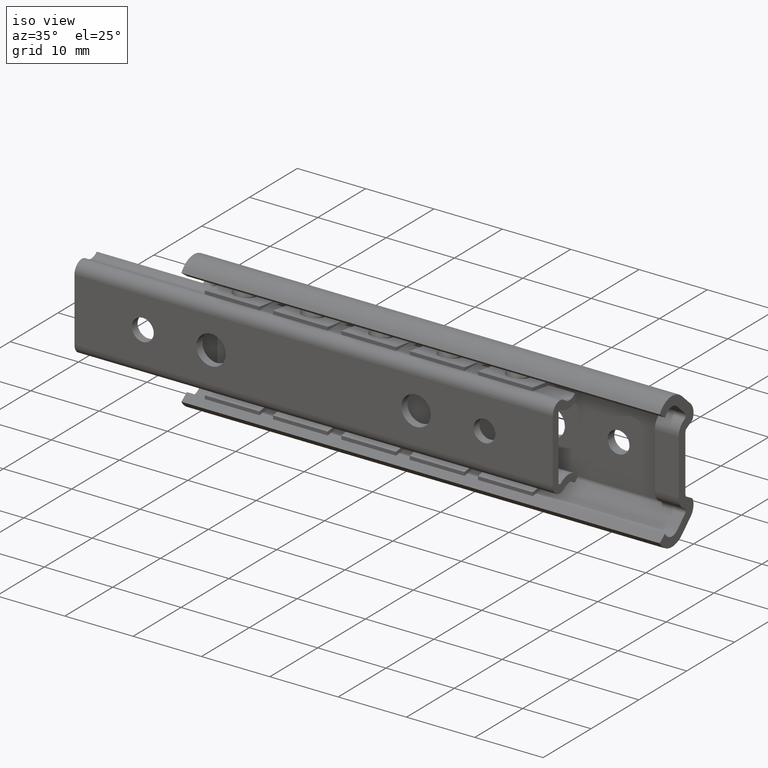
[diagram: clean part render]
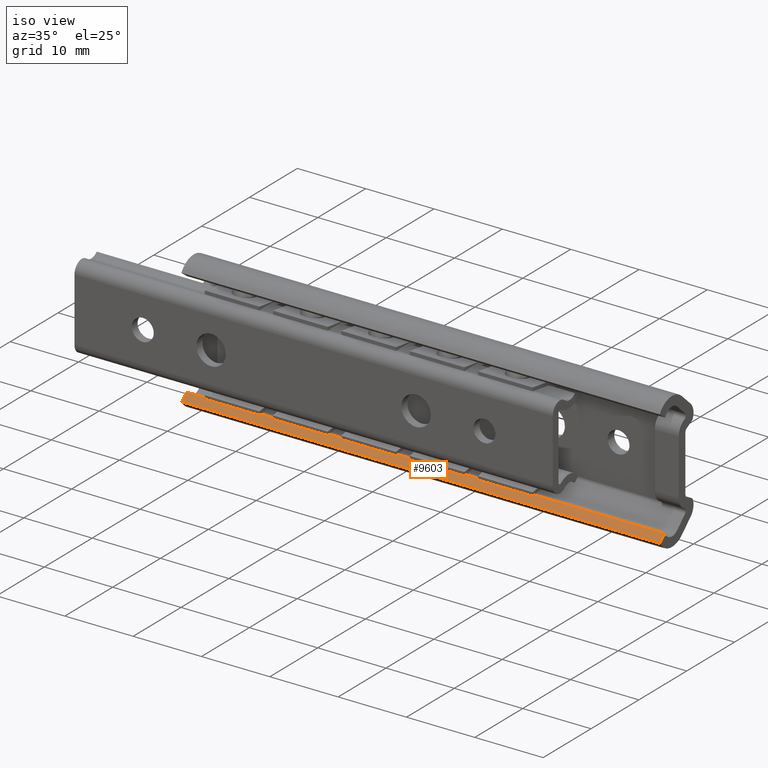
[diagram: same view with one face highlighted and labeled with its STEP entity id]
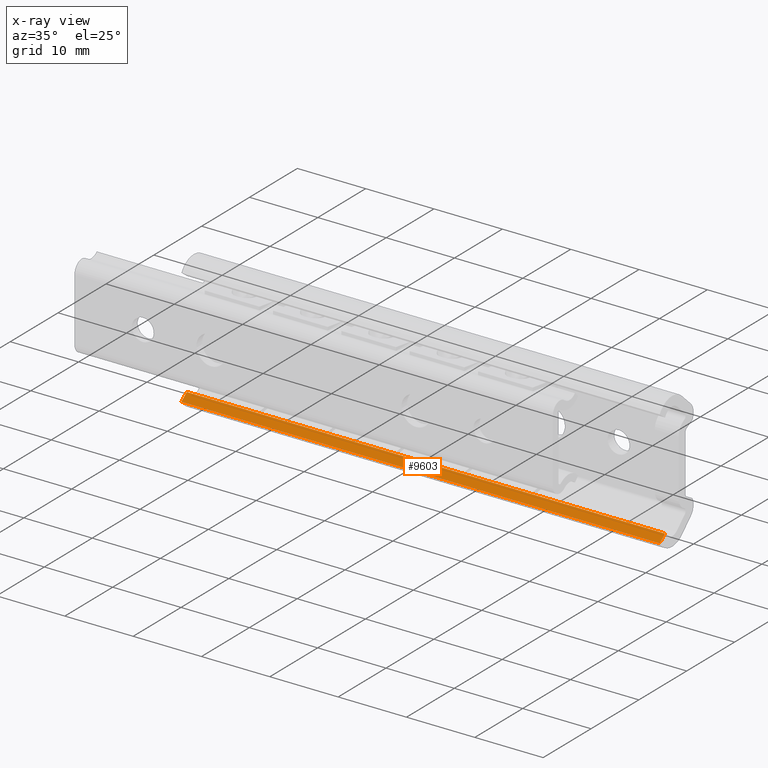
[diagram: x-ray of the same camera — body ghosted, the highlighted face saturated]
A machine part, iso view. The second image highlights one B-rep face of the part: STEP entity #9603.
The next image is the same camera in x-ray: the body ghosted, the highlighted face saturated — about 0% of this face is hidden behind the body in this view.
In plain terms, the highlighted face is a freeform B-spline surface patch.
Its self-contained STEP definition (entity closure, byte-faithful):
#7775=CARTESIAN_POINT('',(70.0,-5.943724000000290,-7.672665000000091));
#7776=VERTEX_POINT('',#7775);
#7792=CARTESIAN_POINT('',(70.0,-7.078071239486619,-8.522037986978919));
#7793=VERTEX_POINT('',#7792);
#7794=CARTESIAN_POINT('',(70.0,-7.078071239486619,-8.522037986978919));
#7795=CARTESIAN_POINT('',(70.0,-5.943724000000290,-7.672665000000091));
#7796=QUASI_UNIFORM_CURVE('',1,(#7794,#7795),.UNSPECIFIED.,.F.,.U.);
#7797=EDGE_CURVE('',#7793,#7776,#7796,.T.);
#8663=CARTESIAN_POINT('',(0.0,-7.078071239486619,-8.522037986978919));
#8664=VERTEX_POINT('',#8663);
#8680=CARTESIAN_POINT('',(0.0,-5.943724000000290,-7.672665000000091));
#8681=VERTEX_POINT('',#8680);
#8682=CARTESIAN_POINT('',(0.0,-7.078071239486619,-8.522037986978919));
#8683=CARTESIAN_POINT('',(0.0,-5.943724000000290,-7.672665000000091));
#8684=QUASI_UNIFORM_CURVE('',1,(#8682,#8683),.UNSPECIFIED.,.F.,.U.);
#8685=EDGE_CURVE('',#8664,#8681,#8684,.T.);
#9577=CARTESIAN_POINT('',(70.0,-5.943724000000290,-7.672665000000091));
#9578=CARTESIAN_POINT('',(0.0,-5.943724000000290,-7.672665000000091));
#9579=QUASI_UNIFORM_CURVE('',1,(#9577,#9578),.UNSPECIFIED.,.F.,.U.);
#9580=EDGE_CURVE('',#7776,#8681,#9579,.T.);
#9588=CARTESIAN_POINT('',(-3.496499864326419,-5.887063517869845,-7.630238931355883));
#9589=CARTESIAN_POINT('',(-3.496499864326419,-7.134731893022689,-8.564464376311195));
#9590=CARTESIAN_POINT('',(73.496501741872720,-5.887063517869845,-7.630238931355883));
#9591=CARTESIAN_POINT('',(73.496501741872720,-7.134731893022689,-8.564464376311195));
#9592=B_SPLINE_SURFACE_WITH_KNOTS('',1,1,((#9588,#9590),(#9589,#9591)),.UNSPECIFIED.,.F.,.F.,.U.,(2,2),(2,2),(0.041708449312299,0.958291744402796),(0.0,76.993001606199144),.UNSPECIFIED.);
#9593=CARTESIAN_POINT('',(70.0,-7.078071239486619,-8.522037986978919));
#9594=CARTESIAN_POINT('',(0.0,-7.078071239486619,-8.522037986978919));
#9595=QUASI_UNIFORM_CURVE('',1,(#9593,#9594),.UNSPECIFIED.,.F.,.U.);
#9596=EDGE_CURVE('',#7793,#8664,#9595,.T.);
#9597=ORIENTED_EDGE('',*,*,#9596,.F.);
#9598=ORIENTED_EDGE('',*,*,#7797,.T.);
#9599=ORIENTED_EDGE('',*,*,#9580,.T.);
#9600=ORIENTED_EDGE('',*,*,#8685,.F.);
#9601=EDGE_LOOP('',(#9597,#9598,#9599,#9600));
#9602=FACE_OUTER_BOUND('',#9601,.T.);
#9603=ADVANCED_FACE('',(#9602),#9592,.T.);